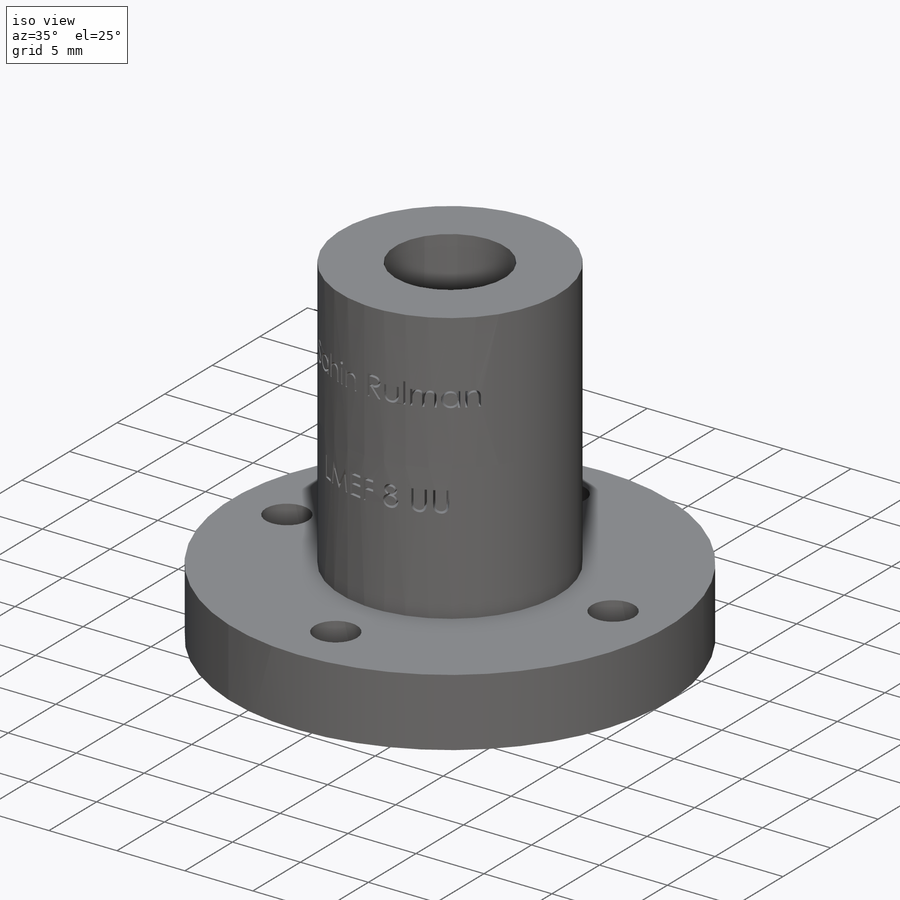
[diagram: iso view]
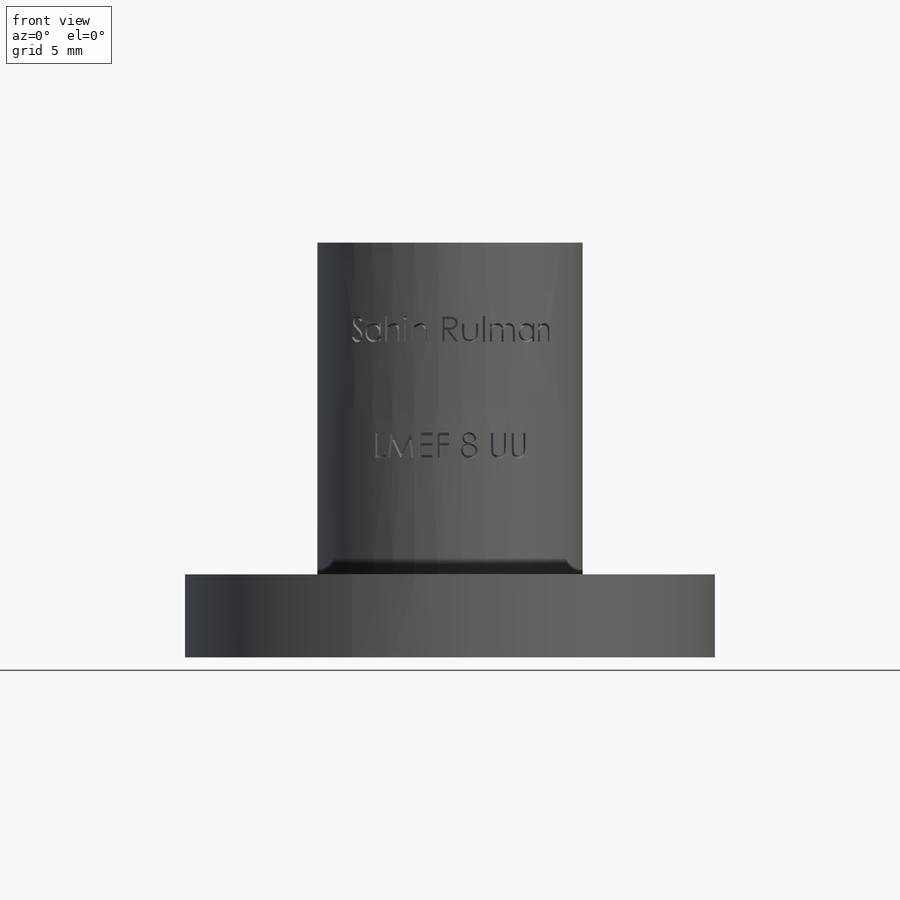
[diagram: front view]
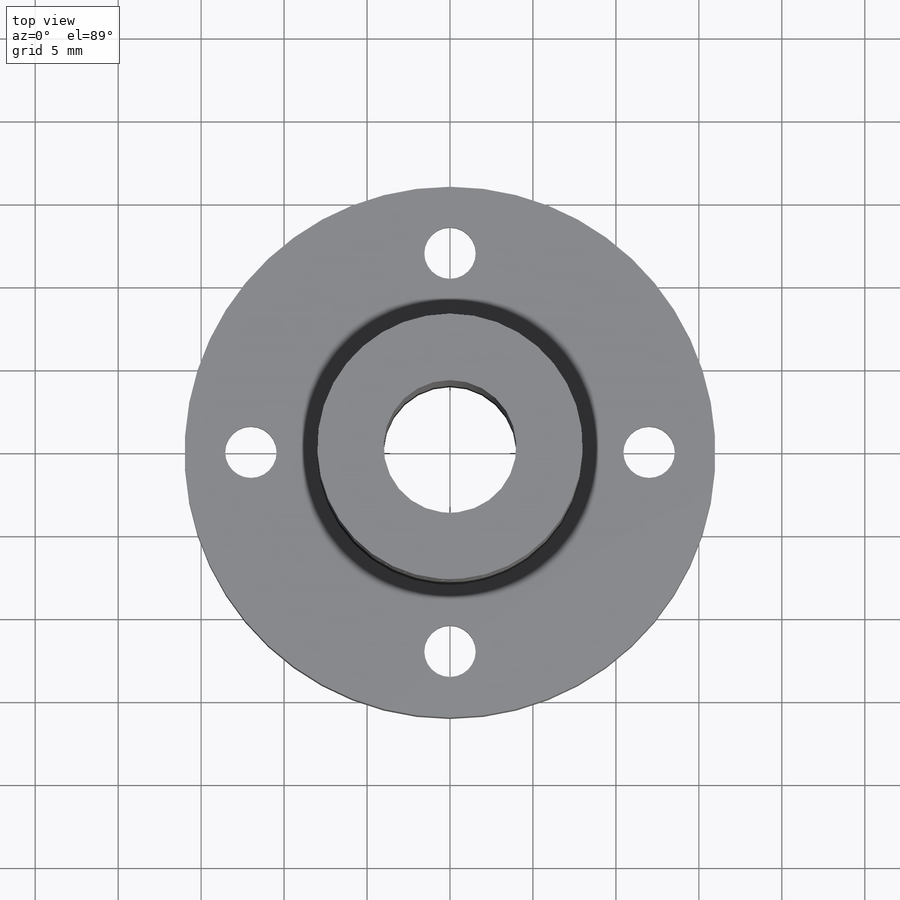
[diagram: top view]
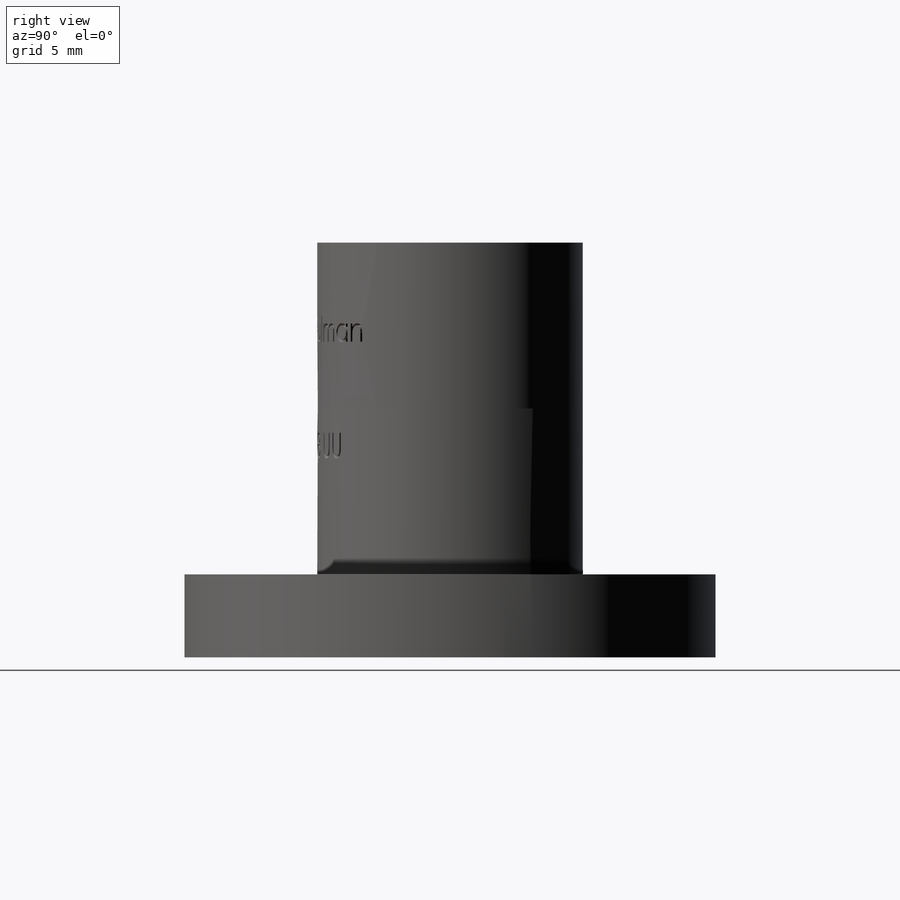
[diagram: right view]
SOLIDWORKS PART (.sldprt)
format: sldprt  version: not decoded by parser v0  size: 822,272 bytes
history: native  units: mm
features: sketch x4, extrude x2, material x1, cut_extrude x1, plane x1 (+11 scaffold rows collapsed)
feature tree (20):
  scaffold x11  (default folders/planes/origin — collapsed)
  material  "Material <not specified>"
  sketch  "Sketch1"  dims[D1=8.0mm D2=32.0mm D3=24.0mm D4=3.1mm D5=4.0]
  extrude  "Boss-Extrude1"  Depth=5mm
  sketch  "Sketch2"  dims[D1=6.0mm D2=4.0]
  cut_extrude  "Cut-Extrude1"  Depth=3.1mm
  sketch  "Sketch3"  dims[D1=16.0mm]
  extrude  "Boss-Extrude2"  Depth=20mm
  plane  "Plane1"  Offset=21.70296mm
  sketch  "Sketch4"  dims[D1=1.0mm]
decode coverage: 7 of 7 modeling features carry decoded parameters
note: suppression state not decoded; provenance and decode notes live in map.json
